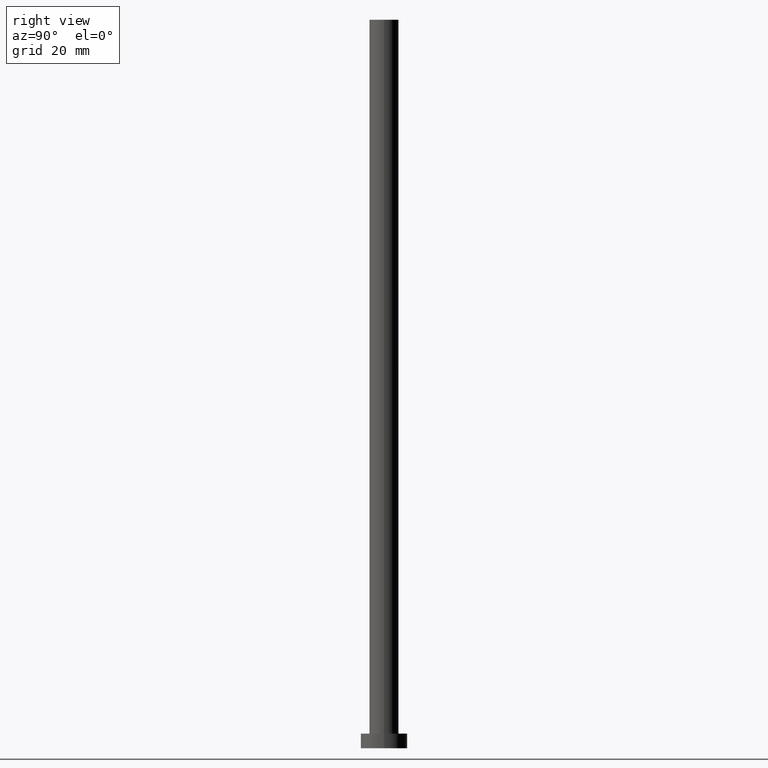
[diagram: clean part render]
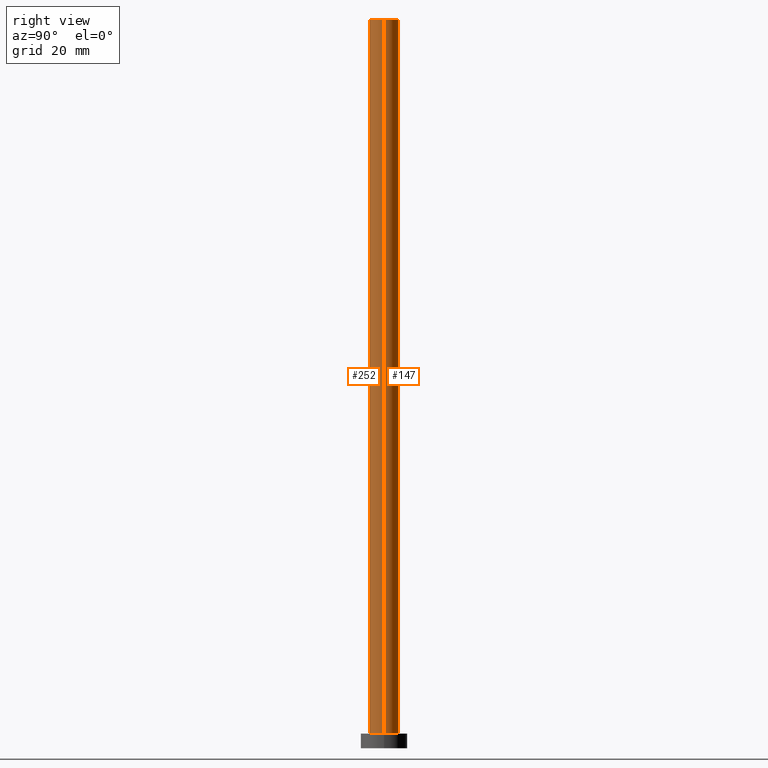
[diagram: same view with one multi-face feature highlighted, each face labeled with its STEP entity id]
A machine part, right view. The highlighted faces form ONE feature: a constant-radius fillet chain: 2 tangent blend faces with common blend radius 5 mm. The faces share edges in the B-rep.
Their STEP definitions:
[1] entity #147 (Cylinder):
#4 = CIRCLE ( 'NONE', #104, 5.000000000000000888 ) ;
#11 = CYLINDRICAL_SURFACE ( 'NONE', #169, 5.000000000000000888 ) ;
#12 = ORIENTED_EDGE ( 'NONE', *, *, #142, .F. ) ;
#14 = CARTESIAN_POINT ( 'NONE',  ( 0.000000000000000000, 0.000000000000000000, 250.0000000000000000 ) ) ;
#17 = VECTOR ( 'NONE', #138, 1000.000000000000000 ) ;
#22 = VECTOR ( 'NONE', #203, 1000.000000000000000 ) ;
#32 = ORIENTED_EDGE ( 'NONE', *, *, #126, .F. ) ;
#36 = ORIENTED_EDGE ( 'NONE', *, *, #154, .T. ) ;
#43 = CARTESIAN_POINT ( 'NONE',  ( -5.000000000000000888, 0.000000000000000000, 5.000000000000000000 ) ) ;
#44 = CARTESIAN_POINT ( 'NONE',  ( 5.000000000000000888, 6.123233995736767268E-16, 250.0000000000000000 ) ) ;
#51 = DIRECTION ( 'NONE',  ( -1.000000000000000000, 0.000000000000000000, 0.000000000000000000 ) ) ;
#61 = VERTEX_POINT ( 'NONE', #109 ) ;
#68 = CARTESIAN_POINT ( 'NONE',  ( 0.000000000000000000, 0.000000000000000000, 5.000000000000000000 ) ) ;
#75 = VERTEX_POINT ( 'NONE', #43 ) ;
#85 = CARTESIAN_POINT ( 'NONE',  ( 0.000000000000000000, 0.000000000000000000, 250.0000000000000000 ) ) ;
#104 = AXIS2_PLACEMENT_3D ( 'NONE', #68, #135, #130 ) ;
#109 = CARTESIAN_POINT ( 'NONE',  ( 5.000000000000000888, 6.123233995736767268E-16, 5.000000000000000000 ) ) ;
#121 = CARTESIAN_POINT ( 'NONE',  ( -5.000000000000000888, 0.000000000000000000, 250.0000000000000000 ) ) ;
#125 = DIRECTION ( 'NONE',  ( 0.000000000000000000, 0.000000000000000000, 1.000000000000000000 ) ) ;
#126 = EDGE_CURVE ( 'NONE', #219, #216, #224, .T. ) ;
#130 = DIRECTION ( 'NONE',  ( 1.000000000000000000, 0.000000000000000000, 0.000000000000000000 ) ) ;
#135 = DIRECTION ( 'NONE',  ( 0.000000000000000000, 0.000000000000000000, 1.000000000000000000 ) ) ;
#138 = DIRECTION ( 'NONE',  ( -0.000000000000000000, -0.000000000000000000, -1.000000000000000000 ) ) ;
#142 = EDGE_CURVE ( 'NONE', #216, #75, #242, .T. ) ;
#144 = CARTESIAN_POINT ( 'NONE',  ( -5.000000000000000888, 0.000000000000000000, 250.0000000000000000 ) ) ;
#147 = ADVANCED_FACE ( 'NONE', ( #172 ), #11, .T. ) ;
#148 = LINE ( 'NONE', #220, #17 ) ;
#154 = EDGE_CURVE ( 'NONE', #219, #61, #148, .T. ) ;
#155 = DIRECTION ( 'NONE',  ( 1.000000000000000000, 0.000000000000000000, 0.000000000000000000 ) ) ;
#159 = EDGE_LOOP ( 'NONE', ( #32, #36, #174, #12 ) ) ;
#169 = AXIS2_PLACEMENT_3D ( 'NONE', #14, #173, #51 ) ;
#172 = FACE_OUTER_BOUND ( 'NONE', #159, .T. ) ;
#173 = DIRECTION ( 'NONE',  ( -0.000000000000000000, -0.000000000000000000, -1.000000000000000000 ) ) ;
#174 = ORIENTED_EDGE ( 'NONE', *, *, #193, .T. ) ;
#179 = AXIS2_PLACEMENT_3D ( 'NONE', #85, #125, #155 ) ;
#193 = EDGE_CURVE ( 'NONE', #61, #75, #4, .T. ) ;
#203 = DIRECTION ( 'NONE',  ( -0.000000000000000000, -0.000000000000000000, -1.000000000000000000 ) ) ;
#216 = VERTEX_POINT ( 'NONE', #121 ) ;
#219 = VERTEX_POINT ( 'NONE', #44 ) ;
#220 = CARTESIAN_POINT ( 'NONE',  ( 5.000000000000000888, 6.123233995736767268E-16, 250.0000000000000000 ) ) ;
#224 = CIRCLE ( 'NONE', #179, 5.000000000000000888 ) ;
#242 = LINE ( 'NONE', #144, #22 ) ;
[2] entity #252 (Cylinder):
#17 = VECTOR ( 'NONE', #138, 1000.000000000000000 ) ;
#18 = CARTESIAN_POINT ( 'NONE',  ( 0.000000000000000000, 0.000000000000000000, 5.000000000000000000 ) ) ;
#22 = VECTOR ( 'NONE', #203, 1000.000000000000000 ) ;
#27 = DIRECTION ( 'NONE',  ( 0.000000000000000000, 0.000000000000000000, 1.000000000000000000 ) ) ;
#29 = AXIS2_PLACEMENT_3D ( 'NONE', #18, #158, #106 ) ;
#33 = FACE_OUTER_BOUND ( 'NONE', #210, .T. ) ;
#43 = CARTESIAN_POINT ( 'NONE',  ( -5.000000000000000888, 0.000000000000000000, 5.000000000000000000 ) ) ;
#44 = CARTESIAN_POINT ( 'NONE',  ( 5.000000000000000888, 6.123233995736767268E-16, 250.0000000000000000 ) ) ;
#56 = ORIENTED_EDGE ( 'NONE', *, *, #59, .F. ) ;
#59 = EDGE_CURVE ( 'NONE', #216, #219, #74, .T. ) ;
#61 = VERTEX_POINT ( 'NONE', #109 ) ;
#74 = CIRCLE ( 'NONE', #229, 5.000000000000000888 ) ;
#75 = VERTEX_POINT ( 'NONE', #43 ) ;
#103 = DIRECTION ( 'NONE',  ( -1.000000000000000000, 0.000000000000000000, 0.000000000000000000 ) ) ;
#106 = DIRECTION ( 'NONE',  ( 1.000000000000000000, 0.000000000000000000, 0.000000000000000000 ) ) ;
#109 = CARTESIAN_POINT ( 'NONE',  ( 5.000000000000000888, 6.123233995736767268E-16, 5.000000000000000000 ) ) ;
#111 = AXIS2_PLACEMENT_3D ( 'NONE', #198, #140, #103 ) ;
#118 = ORIENTED_EDGE ( 'NONE', *, *, #154, .F. ) ;
#121 = CARTESIAN_POINT ( 'NONE',  ( -5.000000000000000888, 0.000000000000000000, 250.0000000000000000 ) ) ;
#133 = ORIENTED_EDGE ( 'NONE', *, *, #142, .T. ) ;
#137 = EDGE_CURVE ( 'NONE', #75, #61, #141, .T. ) ;
#138 = DIRECTION ( 'NONE',  ( -0.000000000000000000, -0.000000000000000000, -1.000000000000000000 ) ) ;
#139 = ORIENTED_EDGE ( 'NONE', *, *, #137, .T. ) ;
#140 = DIRECTION ( 'NONE',  ( -0.000000000000000000, -0.000000000000000000, -1.000000000000000000 ) ) ;
#141 = CIRCLE ( 'NONE', #29, 5.000000000000000888 ) ;
#142 = EDGE_CURVE ( 'NONE', #216, #75, #242, .T. ) ;
#144 = CARTESIAN_POINT ( 'NONE',  ( -5.000000000000000888, 0.000000000000000000, 250.0000000000000000 ) ) ;
#148 = LINE ( 'NONE', #220, #17 ) ;
#154 = EDGE_CURVE ( 'NONE', #219, #61, #148, .T. ) ;
#158 = DIRECTION ( 'NONE',  ( 0.000000000000000000, 0.000000000000000000, 1.000000000000000000 ) ) ;
#188 = DIRECTION ( 'NONE',  ( 1.000000000000000000, 0.000000000000000000, 0.000000000000000000 ) ) ;
#198 = CARTESIAN_POINT ( 'NONE',  ( 0.000000000000000000, 0.000000000000000000, 250.0000000000000000 ) ) ;
#203 = DIRECTION ( 'NONE',  ( -0.000000000000000000, -0.000000000000000000, -1.000000000000000000 ) ) ;
#206 = CARTESIAN_POINT ( 'NONE',  ( 0.000000000000000000, 0.000000000000000000, 250.0000000000000000 ) ) ;
#210 = EDGE_LOOP ( 'NONE', ( #118, #56, #133, #139 ) ) ;
#216 = VERTEX_POINT ( 'NONE', #121 ) ;
#219 = VERTEX_POINT ( 'NONE', #44 ) ;
#220 = CARTESIAN_POINT ( 'NONE',  ( 5.000000000000000888, 6.123233995736767268E-16, 250.0000000000000000 ) ) ;
#221 = CYLINDRICAL_SURFACE ( 'NONE', #111, 5.000000000000000888 ) ;
#229 = AXIS2_PLACEMENT_3D ( 'NONE', #206, #27, #188 ) ;
#242 = LINE ( 'NONE', #144, #22 ) ;
#252 = ADVANCED_FACE ( 'NONE', ( #33 ), #221, .T. ) ;